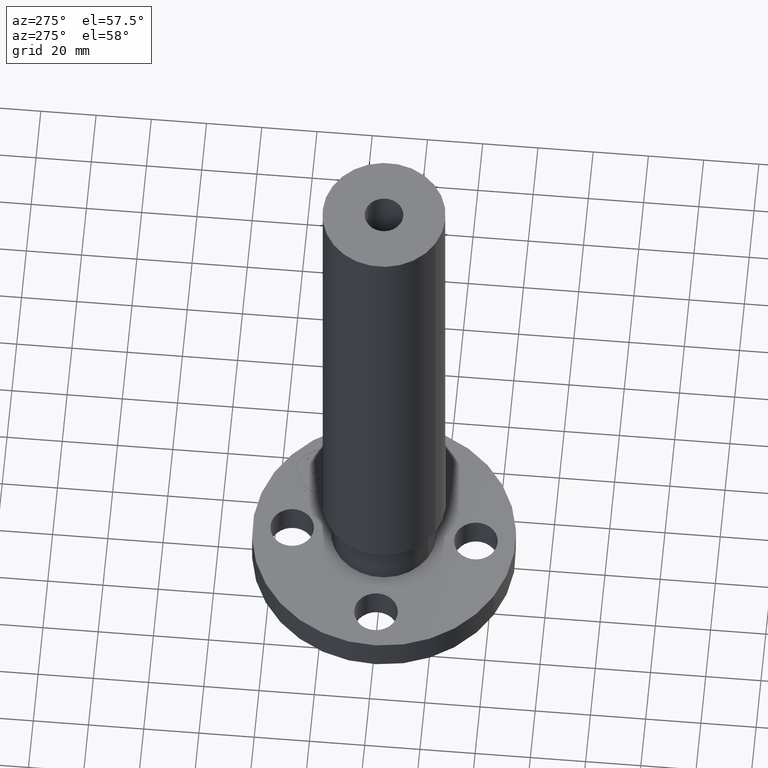
[diagram: clean part render]
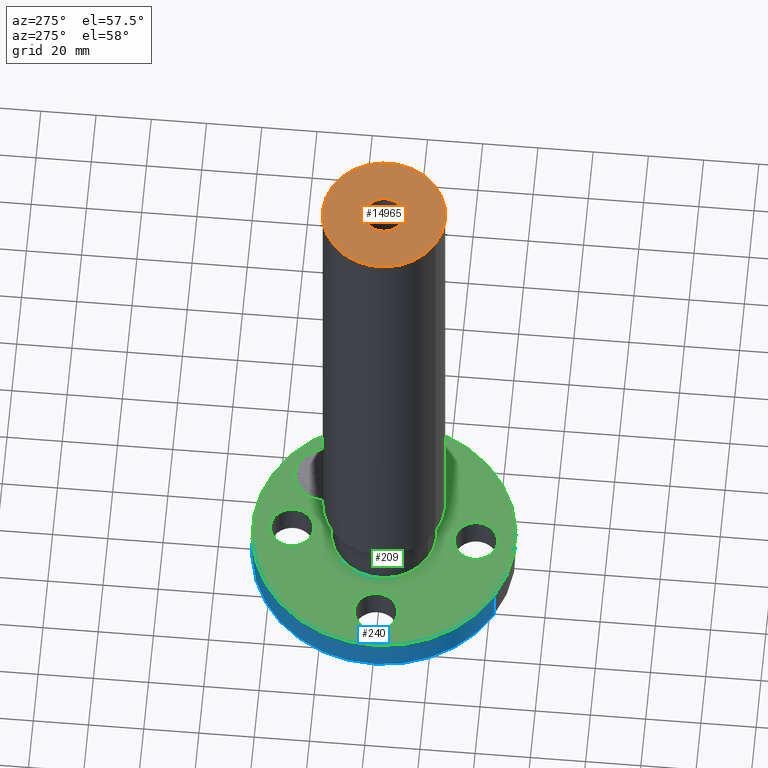
[diagram: same view with three faces highlighted in distinct colors, each labeled with its STEP entity id]
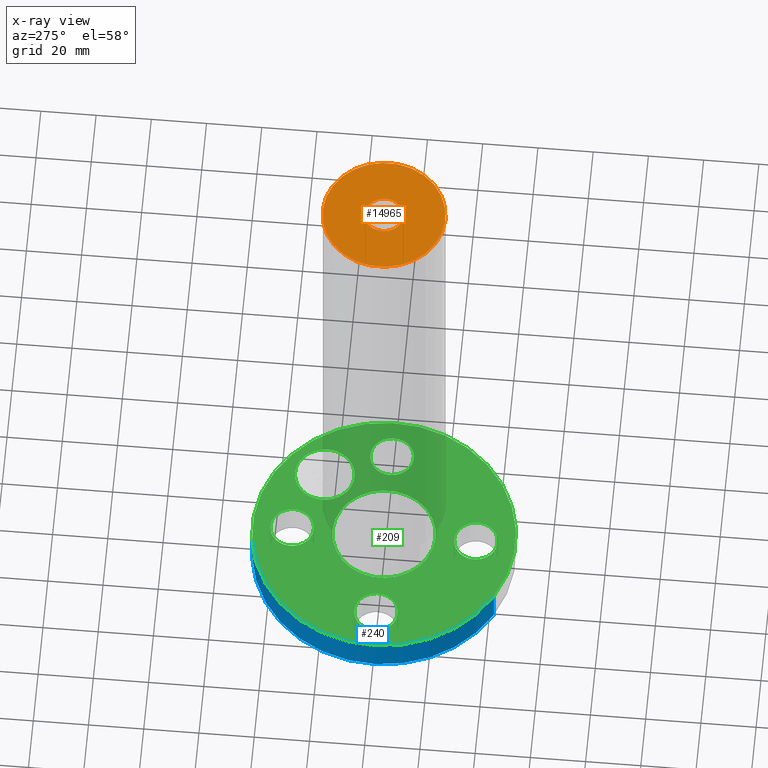
[diagram: x-ray of the same camera — body ghosted, the three highlighted faces saturated]
A machine part, auxiliary view with three faces highlighted in distinct colors.
The next image is the same camera in x-ray (body ghosted, the three faces saturated) — at least one of them is partly hidden behind the body in this view.
Their STEP definitions:

[orange] entity #14965 — the highlighted planar face has unit normal (0, 0, -1).
#4161=AXIS2_PLACEMENT_3D('Circle Axis2P3D',#4159,#4160,$) ;
#4180=AXIS2_PLACEMENT_3D('Circle Axis2P3D',#4178,#4179,$) ;
#14941=AXIS2_PLACEMENT_3D('Plane Axis2P3D',#14938,#14939,#14940) ;
#14949=AXIS2_PLACEMENT_3D('Circle Axis2P3D',#14947,#14948,$) ;
#14958=AXIS2_PLACEMENT_3D('Circle Axis2P3D',#14956,#14957,$) ;
#4156=CARTESIAN_POINT('Vertex',(0.41949734628,0.767884741657,8.93750000004)) ;
#4159=CARTESIAN_POINT('Axis2P3D Location',(0.,0.,8.93750000004)) ;
#4163=CARTESIAN_POINT('Vertex',(-0.41949734628,-0.767884741657,8.93750000004)) ;
#4178=CARTESIAN_POINT('Axis2P3D Location',(0.,0.,8.93750000004)) ;
#14938=CARTESIAN_POINT('Axis2P3D Location',(0.,0.875000000004,8.93750000004)) ;
#14947=CARTESIAN_POINT('Axis2P3D Location',(0.,0.,8.93750000004)) ;
#14951=CARTESIAN_POINT('Vertex',(-0.131842023117,-0.241335204521,8.93750000004)) ;
#14953=CARTESIAN_POINT('Vertex',(0.131842023117,0.241335204521,8.93750000004)) ;
#14956=CARTESIAN_POINT('Axis2P3D Location',(0.,0.,8.93750000004)) ;
#4160=DIRECTION('Axis2P3D Direction',(0.,0.,-0.0393700787402)) ;
#4179=DIRECTION('Axis2P3D Direction',(0.,0.,-0.0393700787402)) ;
#14939=DIRECTION('Axis2P3D Direction',(0.,0.,-0.0393700787402)) ;
#14940=DIRECTION('Axis2P3D XDirection',(0.0393700787402,0.,0.)) ;
#14948=DIRECTION('Axis2P3D Direction',(0.,0.,-0.0393700787402)) ;
#14957=DIRECTION('Axis2P3D Direction',(0.,0.,-0.0393700787402)) ;
#14944=ORIENTED_EDGE('',*,*,#4165,.F.) ;
#14945=ORIENTED_EDGE('',*,*,#4182,.F.) ;
#14962=ORIENTED_EDGE('',*,*,#14955,.T.) ;
#14963=ORIENTED_EDGE('',*,*,#14960,.T.) ;
#14964=FACE_BOUND('',#14961,.T.) ;
#14965=ADVANCED_FACE('PartBody',(#14946,#14964),#14942,.F.) ;
#4162=CIRCLE('generated circle',#4161,0.875000000004) ;
#4181=CIRCLE('generated circle',#4180,0.875000000004) ;
#14950=CIRCLE('generated circle',#14949,0.275000000001) ;
#14959=CIRCLE('generated circle',#14958,0.275000000001) ;
#4165=EDGE_CURVE('',#4157,#4164,#4162,.T.) ;
#4182=EDGE_CURVE('',#4164,#4157,#4181,.T.) ;
#14955=EDGE_CURVE('',#14952,#14954,#14950,.T.) ;
#14960=EDGE_CURVE('',#14954,#14952,#14959,.T.) ;
#14943=EDGE_LOOP('',(#14944,#14945)) ;
#14961=EDGE_LOOP('',(#14962,#14963)) ;
#14946=FACE_OUTER_BOUND('',#14943,.T.) ;
#14942=PLANE('',#14941) ;
#4157=VERTEX_POINT('',#4156) ;
#4164=VERTEX_POINT('',#4163) ;
#14952=VERTEX_POINT('',#14951) ;
#14954=VERTEX_POINT('',#14953) ;

[blue] entity #240 — the highlighted cylindrical surface (partial cylindrical patch) has radius 47.625 mm, axis along (0, 0, -1).
#108=AXIS2_PLACEMENT_3D('Circle Axis2P3D',#106,#107,$) ;
#213=AXIS2_PLACEMENT_3D('Cylinder Axis2P3D',#210,#211,#212) ;
#217=AXIS2_PLACEMENT_3D('Circle Axis2P3D',#215,#216,$) ;
#101=CARTESIAN_POINT('Vertex',(0.898922884886,1.64546730355,0.497500000002)) ;
#103=CARTESIAN_POINT('Vertex',(-0.898922884886,-1.64546730355,0.497500000002)) ;
#106=CARTESIAN_POINT('Axis2P3D Location',(0.,0.,0.497500000002)) ;
#210=CARTESIAN_POINT('Axis2P3D Location',(0.,0.,4.43750000002)) ;
#215=CARTESIAN_POINT('Axis2P3D Location',(0.,0.,0.)) ;
#219=CARTESIAN_POINT('Vertex',(-0.898922884886,-1.64546730355,0.)) ;
#221=CARTESIAN_POINT('Vertex',(0.898922884886,1.64546730355,0.)) ;
#224=CARTESIAN_POINT('Line Origine',(-0.898922884886,-1.64546730355,0.248750000001)) ;
#229=CARTESIAN_POINT('Line Origine',(0.898922884886,1.64546730355,0.248750000001)) ;
#107=DIRECTION('Axis2P3D Direction',(0.,0.,-0.0393700787402)) ;
#211=DIRECTION('Axis2P3D Direction',(0.,0.,-0.0393700787402)) ;
#212=DIRECTION('Axis2P3D XDirection',(0.0188750212049,0.0345504945626,0.)) ;
#216=DIRECTION('Axis2P3D Direction',(0.,0.,-0.0393700787402)) ;
#225=DIRECTION('Vector Direction',(0.,0.,-0.0393700787402)) ;
#230=DIRECTION('Vector Direction',(0.,0.,-0.0393700787402)) ;
#226=VECTOR('Line Direction',#225,0.0393700787402) ;
#231=VECTOR('Line Direction',#230,0.0393700787402) ;
#235=ORIENTED_EDGE('',*,*,#223,.F.) ;
#236=ORIENTED_EDGE('',*,*,#228,.T.) ;
#237=ORIENTED_EDGE('',*,*,#110,.T.) ;
#238=ORIENTED_EDGE('',*,*,#233,.F.) ;
#240=ADVANCED_FACE('PartBody',(#239),#214,.T.) ;
#109=CIRCLE('generated circle',#108,1.87500000001) ;
#218=CIRCLE('generated circle',#217,1.87500000001) ;
#214=CYLINDRICAL_SURFACE('generated cylinder',#213,1.87500000001) ;
#110=EDGE_CURVE('',#104,#102,#109,.T.) ;
#223=EDGE_CURVE('',#220,#222,#218,.T.) ;
#228=EDGE_CURVE('',#220,#104,#227,.F.) ;
#233=EDGE_CURVE('',#222,#102,#232,.F.) ;
#234=EDGE_LOOP('',(#235,#236,#237,#238)) ;
#239=FACE_OUTER_BOUND('',#234,.T.) ;
#227=LINE('Line',#224,#226) ;
#232=LINE('Line',#229,#231) ;
#102=VERTEX_POINT('',#101) ;
#104=VERTEX_POINT('',#103) ;
#220=VERTEX_POINT('',#219) ;
#222=VERTEX_POINT('',#221) ;

[green] entity #209 — the highlighted planar face has unit normal (0, 0, -1).
#51=AXIS2_PLACEMENT_3D('Circle Axis2P3D',#49,#50,$) ;
#77=AXIS2_PLACEMENT_3D('Circle Axis2P3D',#75,#76,$) ;
#95=AXIS2_PLACEMENT_3D('Plane Axis2P3D',#92,#93,#94) ;
#99=AXIS2_PLACEMENT_3D('Circle Axis2P3D',#97,#98,$) ;
#108=AXIS2_PLACEMENT_3D('Circle Axis2P3D',#106,#107,$) ;
#121=AXIS2_PLACEMENT_3D('Circle Axis2P3D',#119,#120,$) ;
#130=AXIS2_PLACEMENT_3D('Circle Axis2P3D',#128,#129,$) ;
#139=AXIS2_PLACEMENT_3D('Circle Axis2P3D',#137,#138,$) ;
#148=AXIS2_PLACEMENT_3D('Circle Axis2P3D',#146,#147,$) ;
#157=AXIS2_PLACEMENT_3D('Circle Axis2P3D',#155,#156,$) ;
#166=AXIS2_PLACEMENT_3D('Circle Axis2P3D',#164,#165,$) ;
#175=AXIS2_PLACEMENT_3D('Circle Axis2P3D',#173,#174,$) ;
#184=AXIS2_PLACEMENT_3D('Circle Axis2P3D',#182,#183,$) ;
#193=AXIS2_PLACEMENT_3D('Circle Axis2P3D',#191,#192,$) ;
#202=AXIS2_PLACEMENT_3D('Circle Axis2P3D',#200,#201,$) ;
#44=CARTESIAN_POINT('Vertex',(1.03794940582,-0.148621916968,0.497500000002)) ;
#49=CARTESIAN_POINT('Axis2P3D Location',(1.31000000001,0.,0.497500000002)) ;
#53=CARTESIAN_POINT('Vertex',(1.58205059419,0.148621916968,0.497500000002)) ;
#75=CARTESIAN_POINT('Axis2P3D Location',(1.31000000001,0.,0.497500000002)) ;
#92=CARTESIAN_POINT('Axis2P3D Location',(0.,1.87500000001,0.497500000002)) ;
#97=CARTESIAN_POINT('Axis2P3D Location',(0.,0.,0.497500000002)) ;
#101=CARTESIAN_POINT('Vertex',(0.898922884886,1.64546730355,0.497500000002)) ;
#103=CARTESIAN_POINT('Vertex',(-0.898922884886,-1.64546730355,0.497500000002)) ;
#106=CARTESIAN_POINT('Axis2P3D Location',(0.,0.,0.497500000002)) ;
#119=CARTESIAN_POINT('Axis2P3D Location',(0.,0.,0.497500000002)) ;
#123=CARTESIAN_POINT('Vertex',(-0.352377770875,-0.645023182992,0.497500000002)) ;
#125=CARTESIAN_POINT('Vertex',(0.352377770875,0.645023182992,0.497500000002)) ;
#128=CARTESIAN_POINT('Axis2P3D Location',(0.,0.,0.497500000002)) ;
#137=CARTESIAN_POINT('Axis2P3D Location',(-6.99353086378E-017,-1.31000000001,0.497500000002)) ;
#141=CARTESIAN_POINT('Vertex',(-0.148621916968,-1.03794940582,0.497500000002)) ;
#143=CARTESIAN_POINT('Vertex',(0.148621916968,-1.58205059419,0.497500000002)) ;
#146=CARTESIAN_POINT('Axis2P3D Location',(-2.44773580232E-016,-1.31000000001,0.497500000002)) ;
#155=CARTESIAN_POINT('Axis2P3D Location',(-1.31000000001,0.,0.497500000002)) ;
#159=CARTESIAN_POINT('Vertex',(-1.03794940582,0.148621916968,0.497500000002)) ;
#161=CARTESIAN_POINT('Vertex',(-1.58205059419,-0.148621916968,0.497500000002)) ;
#164=CARTESIAN_POINT('Axis2P3D Location',(-1.31000000001,-2.79741234551E-016,0.497500000002)) ;
#173=CARTESIAN_POINT('Axis2P3D Location',(-2.09805925913E-016,1.31000000001,0.497500000002)) ;
#177=CARTESIAN_POINT('Vertex',(0.148621916968,1.03794940582,0.497500000002)) ;
#179=CARTESIAN_POINT('Vertex',(-0.148621916968,1.58205059419,0.497500000002)) ;
#182=CARTESIAN_POINT('Axis2P3D Location',(-2.44773580232E-016,1.31000000001,0.497500000002)) ;
#191=CARTESIAN_POINT('Axis2P3D Location',(0.926309883358,0.926309883358,0.497500000002)) ;
#195=CARTESIAN_POINT('Vertex',(1.22683026236,0.625789504358,0.497500000002)) ;
#197=CARTESIAN_POINT('Vertex',(0.625789504358,1.22683026236,0.497500000002)) ;
#200=CARTESIAN_POINT('Axis2P3D Location',(0.926309883358,0.926309883358,0.497500000002)) ;
#50=DIRECTION('Axis2P3D Direction',(0.,-0.,0.0393700787402)) ;
#76=DIRECTION('Axis2P3D Direction',(0.,-0.,0.0393700787402)) ;
#93=DIRECTION('Axis2P3D Direction',(0.,0.,-0.0393700787402)) ;
#94=DIRECTION('Axis2P3D XDirection',(0.0393700787402,0.,0.)) ;
#98=DIRECTION('Axis2P3D Direction',(0.,0.,-0.0393700787402)) ;
#107=DIRECTION('Axis2P3D Direction',(0.,0.,-0.0393700787402)) ;
#120=DIRECTION('Axis2P3D Direction',(0.,0.,-0.0393700787402)) ;
#129=DIRECTION('Axis2P3D Direction',(0.,0.,-0.0393700787402)) ;
#138=DIRECTION('Axis2P3D Direction',(0.,0.,-0.0393700787402)) ;
#147=DIRECTION('Axis2P3D Direction',(0.,0.,-0.0393700787402)) ;
#156=DIRECTION('Axis2P3D Direction',(0.,0.,-0.0393700787402)) ;
#165=DIRECTION('Axis2P3D Direction',(0.,0.,-0.0393700787402)) ;
#174=DIRECTION('Axis2P3D Direction',(0.,0.,-0.0393700787402)) ;
#183=DIRECTION('Axis2P3D Direction',(0.,0.,-0.0393700787402)) ;
#192=DIRECTION('Axis2P3D Direction',(0.,0.,-0.0393700787402)) ;
#201=DIRECTION('Axis2P3D Direction',(0.,0.,-0.0393700787402)) ;
#112=ORIENTED_EDGE('',*,*,#105,.F.) ;
#113=ORIENTED_EDGE('',*,*,#110,.F.) ;
#116=ORIENTED_EDGE('',*,*,#55,.T.) ;
#117=ORIENTED_EDGE('',*,*,#79,.T.) ;
#134=ORIENTED_EDGE('',*,*,#127,.T.) ;
#135=ORIENTED_EDGE('',*,*,#132,.T.) ;
#152=ORIENTED_EDGE('',*,*,#145,.T.) ;
#153=ORIENTED_EDGE('',*,*,#150,.T.) ;
#170=ORIENTED_EDGE('',*,*,#163,.T.) ;
#171=ORIENTED_EDGE('',*,*,#168,.T.) ;
#188=ORIENTED_EDGE('',*,*,#181,.T.) ;
#189=ORIENTED_EDGE('',*,*,#186,.T.) ;
#206=ORIENTED_EDGE('',*,*,#199,.F.) ;
#207=ORIENTED_EDGE('',*,*,#204,.F.) ;
#118=FACE_BOUND('',#115,.T.) ;
#136=FACE_BOUND('',#133,.T.) ;
#154=FACE_BOUND('',#151,.T.) ;
#172=FACE_BOUND('',#169,.T.) ;
#190=FACE_BOUND('',#187,.T.) ;
#208=FACE_BOUND('',#205,.T.) ;
#209=ADVANCED_FACE('PartBody',(#114,#118,#136,#154,#172,#190,#208),#96,.F.) ;
#52=CIRCLE('generated circle',#51,0.310000000001) ;
#78=CIRCLE('generated circle',#77,0.310000000001) ;
#100=CIRCLE('generated circle',#99,1.87500000001) ;
#109=CIRCLE('generated circle',#108,1.87500000001) ;
#122=CIRCLE('generated circle',#121,0.735000000003) ;
#131=CIRCLE('generated circle',#130,0.735000000003) ;
#140=CIRCLE('generated circle',#139,0.310000000001) ;
#149=CIRCLE('generated circle',#148,0.310000000001) ;
#158=CIRCLE('generated circle',#157,0.310000000001) ;
#167=CIRCLE('generated circle',#166,0.310000000001) ;
#176=CIRCLE('generated circle',#175,0.310000000001) ;
#185=CIRCLE('generated circle',#184,0.310000000001) ;
#194=CIRCLE('generated circle',#193,0.424999995752) ;
#203=CIRCLE('generated circle',#202,0.424999995752) ;
#55=EDGE_CURVE('',#54,#45,#52,.F.) ;
#79=EDGE_CURVE('',#45,#54,#78,.F.) ;
#105=EDGE_CURVE('',#102,#104,#100,.T.) ;
#110=EDGE_CURVE('',#104,#102,#109,.T.) ;
#127=EDGE_CURVE('',#124,#126,#122,.T.) ;
#132=EDGE_CURVE('',#126,#124,#131,.T.) ;
#145=EDGE_CURVE('',#142,#144,#140,.T.) ;
#150=EDGE_CURVE('',#144,#142,#149,.T.) ;
#163=EDGE_CURVE('',#160,#162,#158,.T.) ;
#168=EDGE_CURVE('',#162,#160,#167,.T.) ;
#181=EDGE_CURVE('',#178,#180,#176,.T.) ;
#186=EDGE_CURVE('',#180,#178,#185,.T.) ;
#199=EDGE_CURVE('',#196,#198,#194,.F.) ;
#204=EDGE_CURVE('',#198,#196,#203,.F.) ;
#111=EDGE_LOOP('',(#112,#113)) ;
#115=EDGE_LOOP('',(#116,#117)) ;
#133=EDGE_LOOP('',(#134,#135)) ;
#151=EDGE_LOOP('',(#152,#153)) ;
#169=EDGE_LOOP('',(#170,#171)) ;
#187=EDGE_LOOP('',(#188,#189)) ;
#205=EDGE_LOOP('',(#206,#207)) ;
#114=FACE_OUTER_BOUND('',#111,.T.) ;
#96=PLANE('',#95) ;
#45=VERTEX_POINT('',#44) ;
#54=VERTEX_POINT('',#53) ;
#102=VERTEX_POINT('',#101) ;
#104=VERTEX_POINT('',#103) ;
#124=VERTEX_POINT('',#123) ;
#126=VERTEX_POINT('',#125) ;
#142=VERTEX_POINT('',#141) ;
#144=VERTEX_POINT('',#143) ;
#160=VERTEX_POINT('',#159) ;
#162=VERTEX_POINT('',#161) ;
#178=VERTEX_POINT('',#177) ;
#180=VERTEX_POINT('',#179) ;
#196=VERTEX_POINT('',#195) ;
#198=VERTEX_POINT('',#197) ;